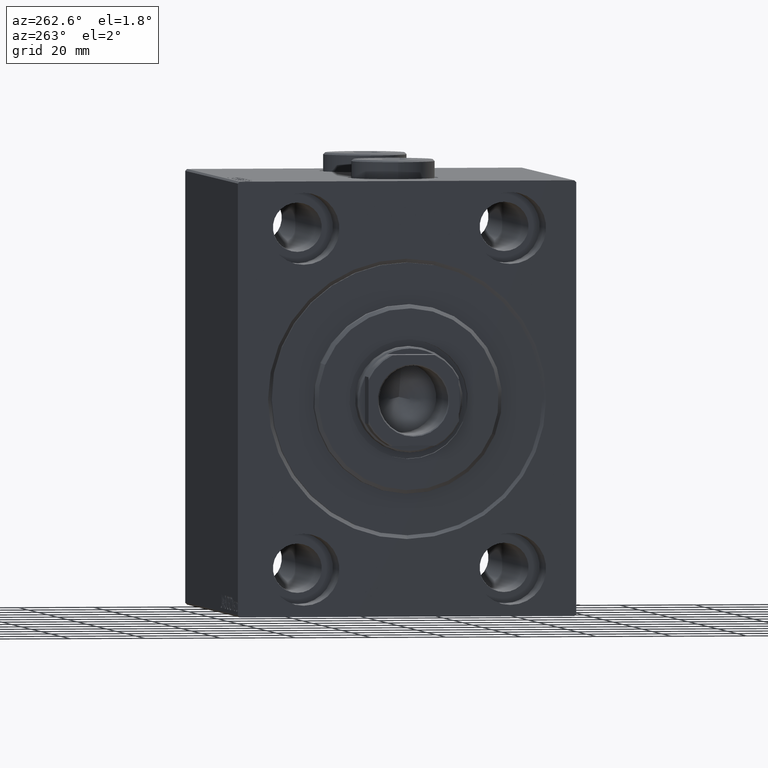
[diagram: clean part render]
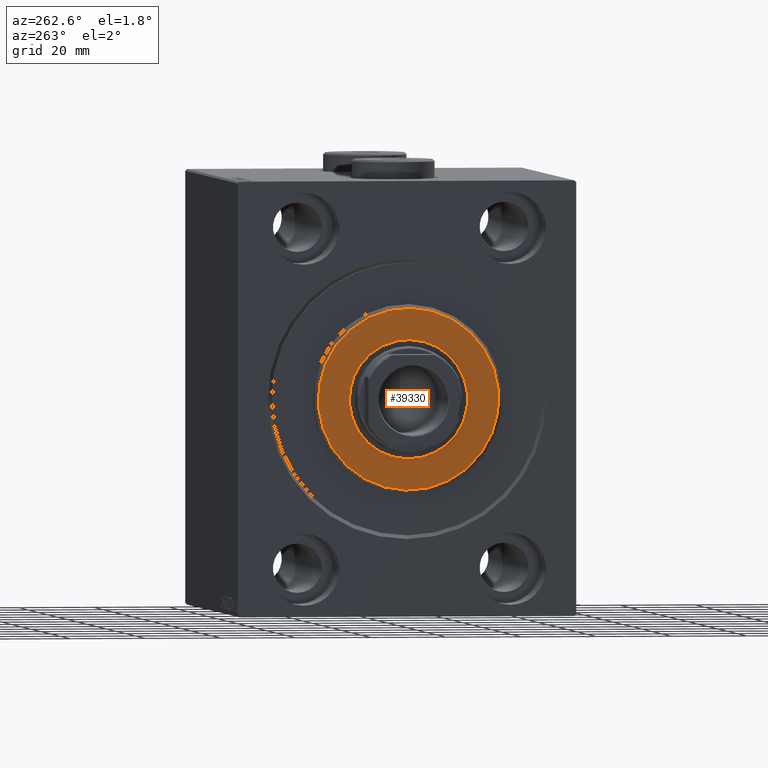
[diagram: same view with one face highlighted and labeled with its STEP entity id]
A machine part, auxiliary view. The second image highlights one B-rep face of the part: STEP entity #39330.
In plain terms, the highlighted planar face has unit normal (-1, 0, 0).
Its self-contained STEP definition (entity closure, byte-faithful):
#1484 = AXIS2_PLACEMENT_3D ( 'NONE', #30478, #30047, #37362 ) ;
#2577 = DIRECTION ( 'NONE',  ( -1.000000000000000000, 0.000000000000000000, -0.000000000000000000 ) ) ;
#3015 = DIRECTION ( 'NONE',  ( 0.000000000000000000, 0.000000000000000000, -1.000000000000000000 ) ) ;
#5419 = CARTESIAN_POINT ( 'NONE',  ( 3.000000000000000000, 0.000000000000000000, 24.00000000000000711 ) ) ;
#5727 = CIRCLE ( 'NONE', #38647, 15.75000000000000000 ) ;
#5766 = CARTESIAN_POINT ( 'NONE',  ( 3.000000000000000000, 0.000000000000000000, 0.000000000000000000 ) ) ;
#6170 = VERTEX_POINT ( 'NONE', #28646 ) ;
#6174 = FACE_OUTER_BOUND ( 'NONE', #8903, .T. ) ;
#6575 = DIRECTION ( 'NONE',  ( 0.000000000000000000, 0.000000000000000000, -1.000000000000000000 ) ) ;
#7103 = DIRECTION ( 'NONE',  ( 0.000000000000000000, 0.000000000000000000, -1.000000000000000000 ) ) ;
#8532 = VERTEX_POINT ( 'NONE', #5419 ) ;
#8794 = EDGE_CURVE ( 'NONE', #19912, #30160, #30234, .T. ) ;
#8903 = EDGE_LOOP ( 'NONE', ( #13887, #33926 ) ) ;
#10318 = DIRECTION ( 'NONE',  ( 1.000000000000000000, -0.000000000000000000, 0.000000000000000000 ) ) ;
#10575 = CARTESIAN_POINT ( 'NONE',  ( 3.000000000000000000, 0.000000000000000000, 0.000000000000000000 ) ) ;
#12718 = CIRCLE ( 'NONE', #14930, 24.00000000000000711 ) ;
#13887 = ORIENTED_EDGE ( 'NONE', *, *, #15600, .T. ) ;
#14105 = AXIS2_PLACEMENT_3D ( 'NONE', #10575, #2577, #3015 ) ;
#14930 = AXIS2_PLACEMENT_3D ( 'NONE', #5766, #33740, #6575 ) ;
#15600 = EDGE_CURVE ( 'NONE', #8532, #6170, #12718, .T. ) ;
#19912 = VERTEX_POINT ( 'NONE', #30840 ) ;
#20860 = CARTESIAN_POINT ( 'NONE',  ( 3.000000000000000000, 0.000000000000000000, 15.75000000000000000 ) ) ;
#23419 = AXIS2_PLACEMENT_3D ( 'NONE', #38510, #10318, #7103 ) ;
#23716 = ORIENTED_EDGE ( 'NONE', *, *, #8794, .T. ) ;
#26181 = CARTESIAN_POINT ( 'NONE',  ( 3.000000000000000000, 0.000000000000000000, 0.000000000000000000 ) ) ;
#26412 = DIRECTION ( 'NONE',  ( 0.000000000000000000, 0.000000000000000000, -1.000000000000000000 ) ) ;
#28465 = EDGE_CURVE ( 'NONE', #30160, #19912, #5727, .T. ) ;
#28646 = CARTESIAN_POINT ( 'NONE',  ( 3.000000000000000000, 3.000384657911015469E-15, -24.00000000000000711 ) ) ;
#30047 = DIRECTION ( 'NONE',  ( 1.000000000000000000, -0.000000000000000000, 0.000000000000000000 ) ) ;
#30160 = VERTEX_POINT ( 'NONE', #20860 ) ;
#30234 = CIRCLE ( 'NONE', #14105, 15.75000000000000000 ) ;
#30478 = CARTESIAN_POINT ( 'NONE',  ( 3.000000000000000000, 0.000000000000000000, 0.000000000000000000 ) ) ;
#30840 = CARTESIAN_POINT ( 'NONE',  ( 3.000000000000000000, 1.928818708657080950E-15, -15.75000000000000000 ) ) ;
#32276 = EDGE_LOOP ( 'NONE', ( #39413, #23716 ) ) ;
#33740 = DIRECTION ( 'NONE',  ( 1.000000000000000000, -0.000000000000000000, 0.000000000000000000 ) ) ;
#33926 = ORIENTED_EDGE ( 'NONE', *, *, #37114, .T. ) ;
#33958 = DIRECTION ( 'NONE',  ( -1.000000000000000000, 0.000000000000000000, -0.000000000000000000 ) ) ;
#34358 = CIRCLE ( 'NONE', #23419, 24.00000000000000711 ) ;
#36929 = PLANE ( 'NONE',  #1484 ) ;
#37114 = EDGE_CURVE ( 'NONE', #6170, #8532, #34358, .T. ) ;
#37362 = DIRECTION ( 'NONE',  ( 0.000000000000000000, 0.000000000000000000, -1.000000000000000000 ) ) ;
#38510 = CARTESIAN_POINT ( 'NONE',  ( 3.000000000000000000, 0.000000000000000000, 0.000000000000000000 ) ) ;
#38647 = AXIS2_PLACEMENT_3D ( 'NONE', #26181, #33958, #26412 ) ;
#39330 = ADVANCED_FACE ( 'NONE', ( #6174, #44673 ), #36929, .T. ) ;
#39413 = ORIENTED_EDGE ( 'NONE', *, *, #28465, .T. ) ;
#44673 = FACE_BOUND ( 'NONE', #32276, .T. ) ;